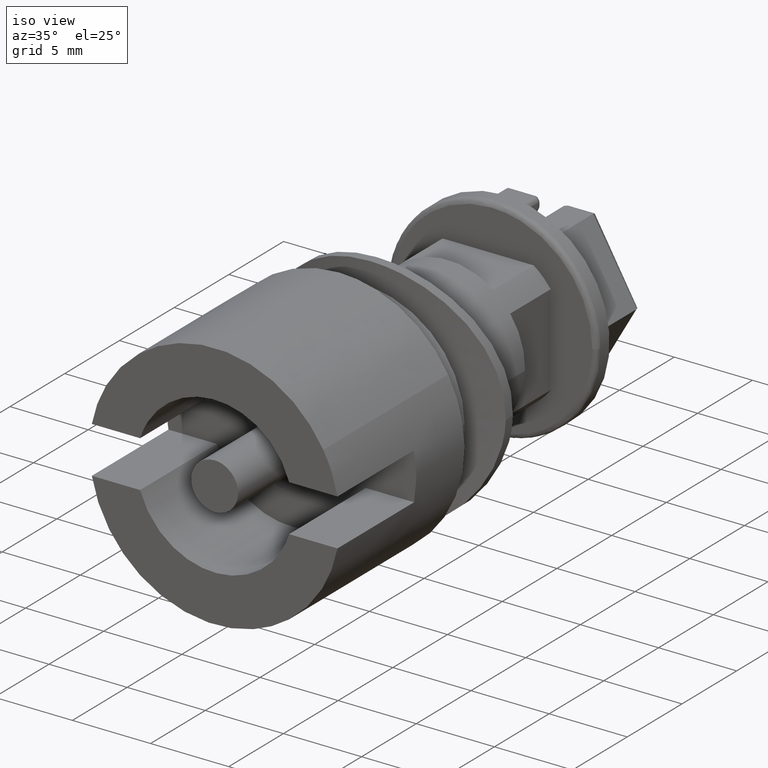
[diagram: clean part render]
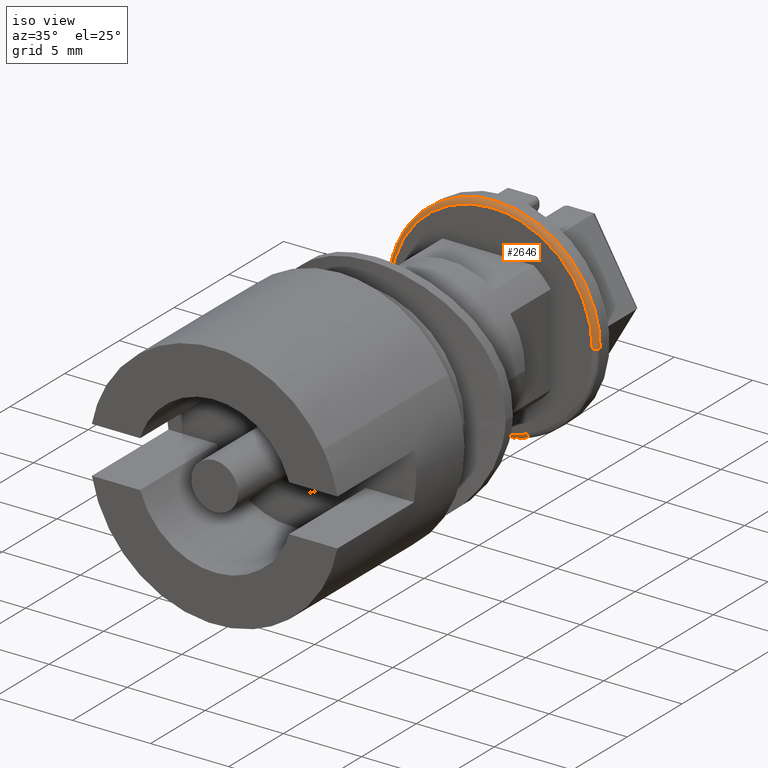
[diagram: same view with one face highlighted and labeled with its STEP entity id]
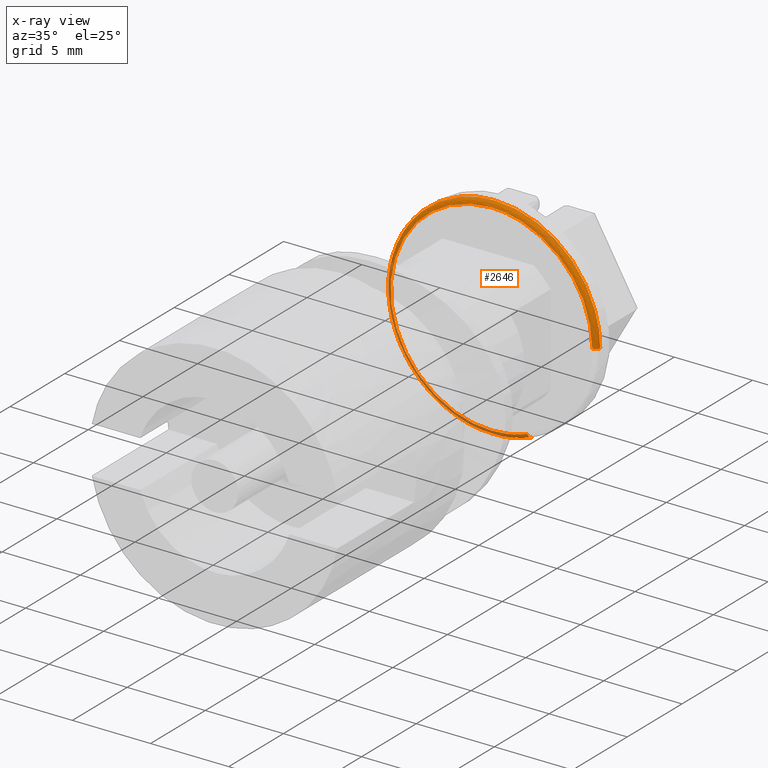
[diagram: x-ray of the same camera — body ghosted, the highlighted face saturated]
A machine part, iso view. The second image highlights one B-rep face of the part: STEP entity #2646.
The next image is the same camera in x-ray: the body ghosted, the highlighted face saturated — about 20% of this face is hidden behind the body in this view.
In plain terms, the highlighted face is a freeform B-spline surface patch.
Its self-contained STEP definition (entity closure, byte-faithful):
#1684=CARTESIAN_POINT('',(-6.749743313559129,18.600001059938201,-0.058899024906559));
#1685=VERTEX_POINT('',#1684);
#1691=CARTESIAN_POINT('',(0.0,18.600001059938201,6.750000304599501));
#1692=VERTEX_POINT('',#1691);
#1693=CARTESIAN_POINT('',(-6.749743313559129,18.600001059938194,-0.058899024906559));
#1694=CARTESIAN_POINT('',(-6.750000288591300,18.600001059938197,-0.029450065036976));
#1695=CARTESIAN_POINT('',(-6.750000288591300,18.600001059938201,0.000000016008201));
#1696=CARTESIAN_POINT('',(-6.750000288591299,18.600001059938194,6.750000304599501));
#1697=CARTESIAN_POINT('',(0.0,18.600001059938201,6.750000304599501));
#1705=(BOUNDED_CURVE()B_SPLINE_CURVE(2,(#1693,#1694,#1695,#1696,#1697),.UNSPECIFIED.,.F.,.U.)B_SPLINE_CURVE_WITH_KNOTS((3,2,3),(0.748460238135121,0.750000000000000,1.0),.UNSPECIFIED.)CURVE()GEOMETRIC_REPRESENTATION_ITEM()RATIONAL_B_SPLINE_CURVE((0.996414334673514,0.998196056764757,1.0,0.707106781186548,1.0))REPRESENTATION_ITEM(''));
#1706=EDGE_CURVE('',#1685,#1692,#1705,.T.);
#1708=CARTESIAN_POINT('',(6.750000288591298,18.600001059629260,0.000000016008202));
#1709=VERTEX_POINT('',#1708);
#1710=CARTESIAN_POINT('',(0.0,18.600001059938201,6.750000304599501));
#1711=CARTESIAN_POINT('',(6.750000288591301,18.600001059938197,6.750000304599500));
#1712=CARTESIAN_POINT('',(6.750000288591298,18.600001059629260,0.000000016008202));
#1720=(BOUNDED_CURVE()B_SPLINE_CURVE(2,(#1710,#1711,#1712),.UNSPECIFIED.,.F.,.U.)B_SPLINE_CURVE_WITH_KNOTS((3,3),(0.0,0.250000000000000),.UNSPECIFIED.)CURVE()GEOMETRIC_REPRESENTATION_ITEM()RATIONAL_B_SPLINE_CURVE((1.0,0.707106781186547,1.0))REPRESENTATION_ITEM(''));
#1721=EDGE_CURVE('',#1692,#1709,#1720,.T.);
#1723=CARTESIAN_POINT('',(2.384788376919464,18.600001059645649,-6.314688281389577));
#1724=VERTEX_POINT('',#1723);
#1738=CARTESIAN_POINT('',(0.0,18.600001059938201,-6.750000272583099));
#1739=VERTEX_POINT('',#1738);
#1740=CARTESIAN_POINT('',(2.384788376919464,18.600001059645649,-6.314688281389577));
#1741=CARTESIAN_POINT('',(1.232124449543099,18.600001059938197,-6.750000272583099));
#1742=CARTESIAN_POINT('',(0.0,18.600001059938201,-6.750000272583099));
#1750=(BOUNDED_CURVE()B_SPLINE_CURVE(2,(#1740,#1741,#1742),.UNSPECIFIED.,.F.,.U.)B_SPLINE_CURVE_WITH_KNOTS((3,3),(0.439999999999804,0.500000000000000),.UNSPECIFIED.)CURVE()GEOMETRIC_REPRESENTATION_ITEM()RATIONAL_B_SPLINE_CURVE((0.893152553776614,0.929705627484542,1.0))REPRESENTATION_ITEM(''));
#1751=EDGE_CURVE('',#1724,#1739,#1750,.T.);
#1753=CARTESIAN_POINT('',(-4.569048122692557,18.600001059938201,-4.968531270851351));
#1754=VERTEX_POINT('',#1753);
#1755=CARTESIAN_POINT('',(0.0,18.600001059938201,-6.750000272583099));
#1756=CARTESIAN_POINT('',(-2.631820864847090,18.600001059938197,-6.750000272583098));
#1757=CARTESIAN_POINT('',(-4.569048122692557,18.600001059938201,-4.968531270851350));
#1765=(BOUNDED_CURVE()B_SPLINE_CURVE(2,(#1755,#1756,#1757),.UNSPECIFIED.,.F.,.U.)B_SPLINE_CURVE_WITH_KNOTS((3,3),(0.500000000000000,0.618682784112190),.UNSPECIFIED.)CURVE()GEOMETRIC_REPRESENTATION_ITEM()RATIONAL_B_SPLINE_CURVE((1.0,0.860954469374555,0.853927424292986))REPRESENTATION_ITEM(''));
#1766=EDGE_CURVE('',#1739,#1754,#1765,.T.);
#1808=CARTESIAN_POINT('',(-4.569048122692557,18.600001059938194,-4.968531270851351));
#1809=CARTESIAN_POINT('',(-6.724195300395946,18.600001059938197,-2.986663694035303));
#1810=CARTESIAN_POINT('',(-6.749743313559129,18.600001059938194,-0.058899024906559));
#1818=(BOUNDED_CURVE()B_SPLINE_CURVE(2,(#1808,#1809,#1810),.UNSPECIFIED.,.F.,.U.)B_SPLINE_CURVE_WITH_KNOTS((3,3),(0.618682784112189,0.748460238135121),.UNSPECIFIED.)CURVE()GEOMETRIC_REPRESENTATION_ITEM()RATIONAL_B_SPLINE_CURVE((0.853927424292986,0.846243479002923,0.996414334673514))REPRESENTATION_ITEM(''));
#1819=EDGE_CURVE('',#1754,#1685,#1818,.T.);
#2529=CARTESIAN_POINT('',(2.271447215591022,18.300723367182112,-6.014571880305885));
#2530=CARTESIAN_POINT('',(1.173565620017940,18.300723367182108,-6.429194921862904));
#2531=CARTESIAN_POINT('',(7.873233E-016,18.300723367182112,-6.429194921862903));
#2532=CARTESIAN_POINT('',(-6.429194937871105,18.300723367182108,-6.429194921862902));
#2533=CARTESIAN_POINT('',(-6.429194937871104,18.300723367182112,0.000000016008200));
#2534=CARTESIAN_POINT('',(-6.429194937871106,18.300723367182108,6.429194953879303));
#2535=CARTESIAN_POINT('',(-1.574647E-015,18.300723367182112,6.429194953879305));
#2536=CARTESIAN_POINT('',(6.429194937871101,18.300723367182108,6.429194953879307));
#2537=CARTESIAN_POINT('',(6.429194937871104,18.300723367182112,0.000000016008203));
#2538=CARTESIAN_POINT('',(2.393027735049253,18.276800202285614,-6.336505302510672));
#2539=CARTESIAN_POINT('',(1.236381395229770,18.276800202285621,-6.773321280987306));
#2540=CARTESIAN_POINT('',(8.294652E-016,18.276800202285607,-6.773321280987307));
#2541=CARTESIAN_POINT('',(-6.773321296995507,18.276800202285617,-6.773321280987308));
#2542=CARTESIAN_POINT('',(-6.773321296995507,18.276800202285607,0.000000016008200));
#2543=CARTESIAN_POINT('',(-6.773321296995509,18.276800202285617,6.773321313003708));
#2544=CARTESIAN_POINT('',(-1.658930E-015,18.276800202285607,6.773321313003708));
#2545=CARTESIAN_POINT('',(6.773321296995507,18.276800202285617,6.773321313003710));
#2546=CARTESIAN_POINT('',(6.773321296995507,18.276800202285607,0.000000016008203));
#2547=CARTESIAN_POINT('',(2.384530444956239,18.620917645794623,-6.314005302582219));
#2548=CARTESIAN_POINT('',(1.231991186446562,18.620917645794623,-6.749270211661699));
#2549=CARTESIAN_POINT('',(8.265199E-016,18.620917645794623,-6.749270211661701));
#2550=CARTESIAN_POINT('',(-6.749270227669899,18.620917645794623,-6.749270211661702));
#2551=CARTESIAN_POINT('',(-6.749270227669902,18.620917645794623,0.000000016008200));
#2552=CARTESIAN_POINT('',(-6.749270227669902,18.620917645794623,6.749270243678100));
#2553=CARTESIAN_POINT('',(-1.653040E-015,18.620917645794623,6.749270243678102));
#2554=CARTESIAN_POINT('',(6.749270227669899,18.620917645794623,6.749270243678103));
#2555=CARTESIAN_POINT('',(6.749270227669902,18.620917645794623,0.000000016008203));
#2563=(BOUNDED_SURFACE()B_SPLINE_SURFACE(2,2,((#2529,#2538,#2547),(#2530,#2539,#2548),(#2531,#2540,#2549),(#2532,#2541,#2550),(#2533,#2542,#2551),(#2534,#2543,#2552),(#2535,#2544,#2553),(#2536,#2545,#2554),(#2537,#2546,#2555)),.UNSPECIFIED.,.F.,.F.,.U.)B_SPLINE_SURFACE_WITH_KNOTS((3,2,2,2,3),(3,3),(0.0,2.683813693844950,13.866370751532230,25.048927809219510,36.231484866906797),(0.0,0.546710502593664),.UNSPECIFIED.)GEOMETRIC_REPRESENTATION_ITEM()RATIONAL_B_SPLINE_SURFACE(((0.818098151110686,0.535367500566542,0.813565534301845),(0.851579555705463,0.557277898321417,0.846861437466208),(0.915966872233881,0.599413278619253,0.910892020474599),(0.647686386698809,0.423849194044935,0.644097924606305),(0.915966872233881,0.599413278619253,0.910892020474599),(0.647686386698809,0.423849194044935,0.644097924606305),(0.915966872233881,0.599413278619253,0.910892020474599),(0.647686386698809,0.423849194044935,0.644097924606305),(0.915966872233881,0.599413278619253,0.910892020474599)))REPRESENTATION_ITEM('')SURFACE());
#2564=CARTESIAN_POINT('',(0.0,18.300001059938200,-6.450000272583099));
#2565=VERTEX_POINT('',#2564);
#2566=CARTESIAN_POINT('',(2.278797789089342,18.300001059938200,-6.034035485670046));
#2567=VERTEX_POINT('',#2566);
#2568=CARTESIAN_POINT('',(0.0,18.300001059938200,-6.450000272583099));
#2569=CARTESIAN_POINT('',(1.177363365326297,18.300001059938204,-6.450000272583099));
#2570=CARTESIAN_POINT('',(2.278797789089342,18.300001059938193,-6.034035485670046));
#2578=(BOUNDED_CURVE()B_SPLINE_CURVE(2,(#2568,#2569,#2570),.UNSPECIFIED.,.F.,.U.)B_SPLINE_CURVE_WITH_KNOTS((3,3),(0.500000000000000,0.560000000004379),.UNSPECIFIED.)CURVE()GEOMETRIC_REPRESENTATION_ITEM()RATIONAL_B_SPLINE_CURVE((1.0,0.929705627479641,0.893152553771517))REPRESENTATION_ITEM(''));
#2579=EDGE_CURVE('',#2565,#2567,#2578,.T.);
#2580=ORIENTED_EDGE('',*,*,#2579,.F.);
#2581=CARTESIAN_POINT('',(0.0,18.300001059938200,6.450000304599501));
#2582=VERTEX_POINT('',#2581);
#2583=CARTESIAN_POINT('',(0.0,18.300001059938200,6.450000304599501));
#2584=CARTESIAN_POINT('',(-6.450000288591301,18.300001059938200,6.450000304599501));
#2585=CARTESIAN_POINT('',(-6.450000288591300,18.300001059938200,0.000000016008201));
#2586=CARTESIAN_POINT('',(-6.450000288591301,18.300001059938200,-6.450000272583099));
#2587=CARTESIAN_POINT('',(0.0,18.300001059938200,-6.450000272583099));
#2595=(BOUNDED_CURVE()B_SPLINE_CURVE(2,(#2583,#2584,#2585,#2586,#2587),.UNSPECIFIED.,.F.,.U.)B_SPLINE_CURVE_WITH_KNOTS((3,2,3),(0.0,0.250000000000000,0.500000000000000),.UNSPECIFIED.)CURVE()GEOMETRIC_REPRESENTATION_ITEM()RATIONAL_B_SPLINE_CURVE((1.0,0.707106781186548,1.0,0.707106781186548,1.0))REPRESENTATION_ITEM(''));
#2596=EDGE_CURVE('',#2582,#2565,#2595,.T.);
#2597=ORIENTED_EDGE('',*,*,#2596,.F.);
#2598=CARTESIAN_POINT('',(6.450000288654634,18.300001059938200,0.000000016008201));
#2599=VERTEX_POINT('',#2598);
#2600=CARTESIAN_POINT('',(6.450000288654634,18.300001059938200,0.000000016008201));
#2601=CARTESIAN_POINT('',(6.450000288591301,18.300001059938200,6.450000304599501));
#2602=CARTESIAN_POINT('',(0.0,18.300001059938200,6.450000304599501));
#2610=(BOUNDED_CURVE()B_SPLINE_CURVE(2,(#2600,#2601,#2602),.UNSPECIFIED.,.F.,.U.)B_SPLINE_CURVE_WITH_KNOTS((3,3),(0.750000000000000,1.0),.UNSPECIFIED.)CURVE()GEOMETRIC_REPRESENTATION_ITEM()RATIONAL_B_SPLINE_CURVE((1.0,0.707106781186548,1.0))REPRESENTATION_ITEM(''));
#2611=EDGE_CURVE('',#2599,#2582,#2610,.T.);
#2612=ORIENTED_EDGE('',*,*,#2611,.F.);
#2613=CARTESIAN_POINT('',(6.450000288654634,18.300001059938204,0.000000016008201));
#2614=CARTESIAN_POINT('',(6.750000287973426,18.300001060064876,0.000000016008201));
#2615=CARTESIAN_POINT('',(6.750000288591299,18.600001059629260,0.000000016008202));
#2623=(BOUNDED_CURVE()B_SPLINE_CURVE(2,(#2613,#2614,#2615),.UNSPECIFIED.,.F.,.U.)B_SPLINE_CURVE_WITH_KNOTS((3,3),(-1.736413120635176,-0.276558720135754),.UNSPECIFIED.)CURVE()GEOMETRIC_REPRESENTATION_ITEM()RATIONAL_B_SPLINE_CURVE((0.888510408905772,0.626638727694931,0.883897566391298))REPRESENTATION_ITEM(''));
#2624=EDGE_CURVE('',#2599,#1709,#2623,.T.);
#2625=ORIENTED_EDGE('',*,*,#2624,.T.);
#2626=ORIENTED_EDGE('',*,*,#1721,.F.);
#2627=ORIENTED_EDGE('',*,*,#1706,.F.);
#2628=ORIENTED_EDGE('',*,*,#1819,.F.);
#2629=ORIENTED_EDGE('',*,*,#1766,.F.);
#2630=ORIENTED_EDGE('',*,*,#1751,.F.);
#2631=CARTESIAN_POINT('',(2.278797789089342,18.300001059938204,-6.034035485670045));
#2632=CARTESIAN_POINT('',(2.384788376708838,18.300001071758981,-6.314688280843699));
#2633=CARTESIAN_POINT('',(2.384788376919464,18.600001059645656,-6.314688281389578));
#2641=(BOUNDED_CURVE()B_SPLINE_CURVE(2,(#2631,#2632,#2633),.UNSPECIFIED.,.F.,.U.)B_SPLINE_CURVE_WITH_KNOTS((3,3),(-1.736413080291906,-0.276558720023227),.UNSPECIFIED.)CURVE()GEOMETRIC_REPRESENTATION_ITEM()RATIONAL_B_SPLINE_CURVE((0.793575327844269,0.559683986267940,0.789455368734955))REPRESENTATION_ITEM(''));
#2642=EDGE_CURVE('',#2567,#1724,#2641,.T.);
#2643=ORIENTED_EDGE('',*,*,#2642,.F.);
#2644=EDGE_LOOP('',(#2580,#2597,#2612,#2625,#2626,#2627,#2628,#2629,#2630,#2643));
#2645=FACE_OUTER_BOUND('',#2644,.T.);
#2646=ADVANCED_FACE('',(#2645),#2563,.T.);